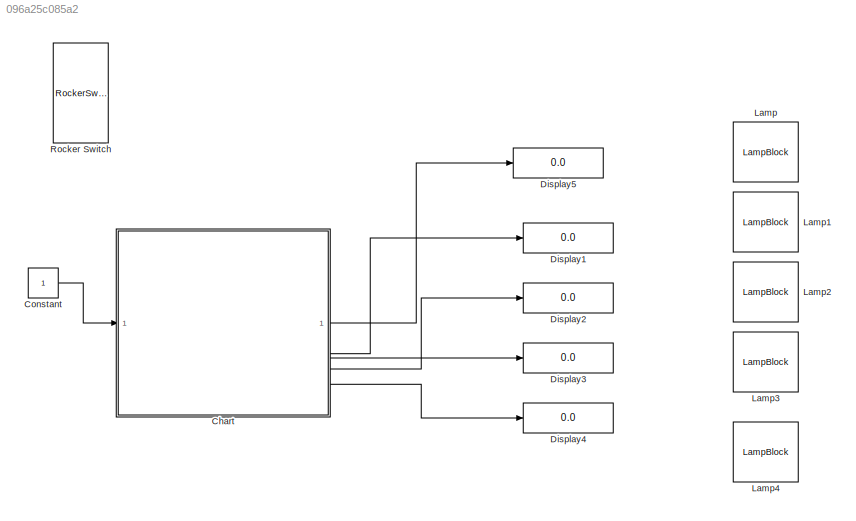
MODEL slx_096a25c085a2
KIND model
CONFIG AbsTol = auto
CONFIG EnableMultiTasking = off
CONFIG FixedStep = auto
CONFIG MaxStep = auto
CONFIG MinStep = auto
CONFIG RelTol = 1e-3
CONFIG SampleTimeConstraint = Unconstrained
CONFIG SolverName = VariableStepAuto
CONFIG StartTime = 0.0
CONFIG StopTime = 50
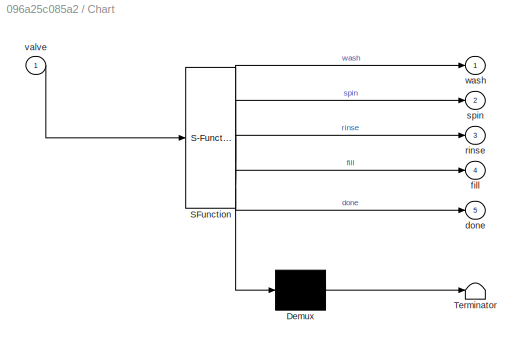
BLOCK [SubSystem] Chart
  ErrorFcn = Stateflow.Translate.translate
  PermitHierarchicalResolution = ExplicitOnly
  SFBlockType = Chart
  TreatAsAtomicUnit = on
BLOCK [Demux] Chart/ Demux 
  Outputs = 1
BLOCK [S-Function] Chart/ SFunction 
  EnableBusSupport = on
  FunctionName = sf_sfun
  PortCounts = [1 6]
  SFcnIsStateOwnerBlock = off
  SFunctionDeploymentMode = off
  Tag = Stateflow S-Function 3
BLOCK [Terminator] Chart/ Terminator 
BLOCK [Outport] Chart/done
  Port = 5
BLOCK [Outport] Chart/fill
  Port = 4
BLOCK [Outport] Chart/rinse
  Port = 3
BLOCK [Outport] Chart/spin
  Port = 2
BLOCK [Inport] Chart/valve
BLOCK [Outport] Chart/wash
BLOCK [Constant] Constant
BLOCK [Display] Display1
  Decimation = 1
BLOCK [Display] Display2
  Decimation = 1
BLOCK [Display] Display3
  Decimation = 1
BLOCK [Display] Display4
  Decimation = 1
BLOCK [Display] Display5
  Decimation = 1
BLOCK [LampBlock] Lamp
  LabelPosition = Hide
BLOCK [LampBlock] Lamp1
  LabelPosition = Hide
BLOCK [LampBlock] Lamp2
  LabelPosition = Hide
BLOCK [LampBlock] Lamp3
  LabelPosition = Hide
BLOCK [LampBlock] Lamp4
  LabelPosition = Hide
BLOCK [RockerSwitchBlock] Rocker Switch
LINE Chart:1 -> Display5:1
LINE Chart:2 -> Display1:1
LINE Chart:3 -> Display2:1
LINE Chart:4 -> Display3:1
LINE Chart:5 -> Display4:1
LINE Constant:1 -> Chart:1
CHART Chart states=6 transitions=6
  STATE_LABEL 'valve'
  STATE_LABEL 'fill\nentry:\nfill=1'
  STATE_LABEL 'wash\nentry:\nwash=2'
  STATE_LABEL 'rinse\nentry:\nrinse=3'
  STATE_LABEL 'spin\nentry:\nspin=4'
  STATE_LABEL 'done\nentry:\ndone=5'
CHART  states=0 transitions=0
